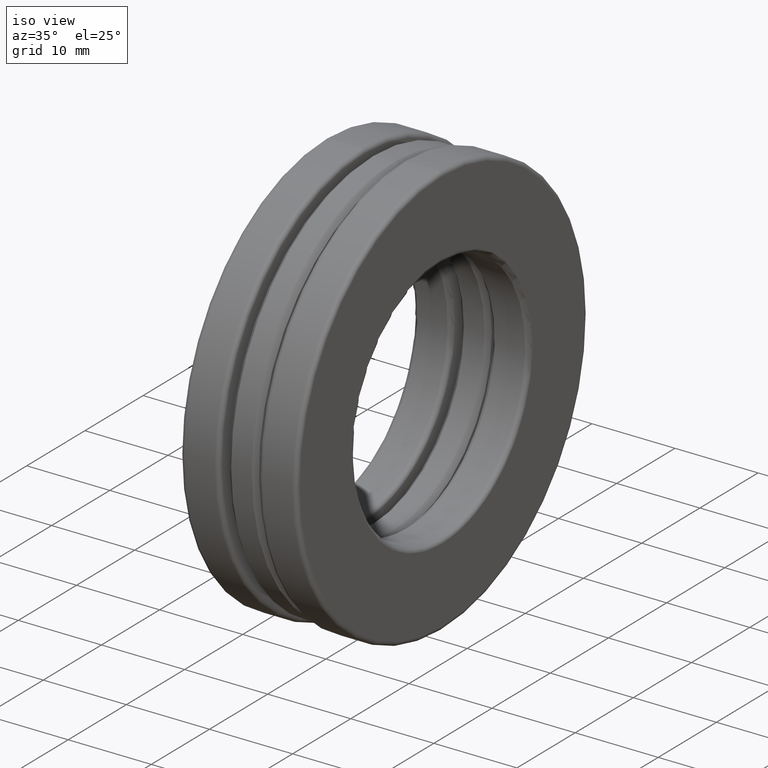
[diagram: clean part render]
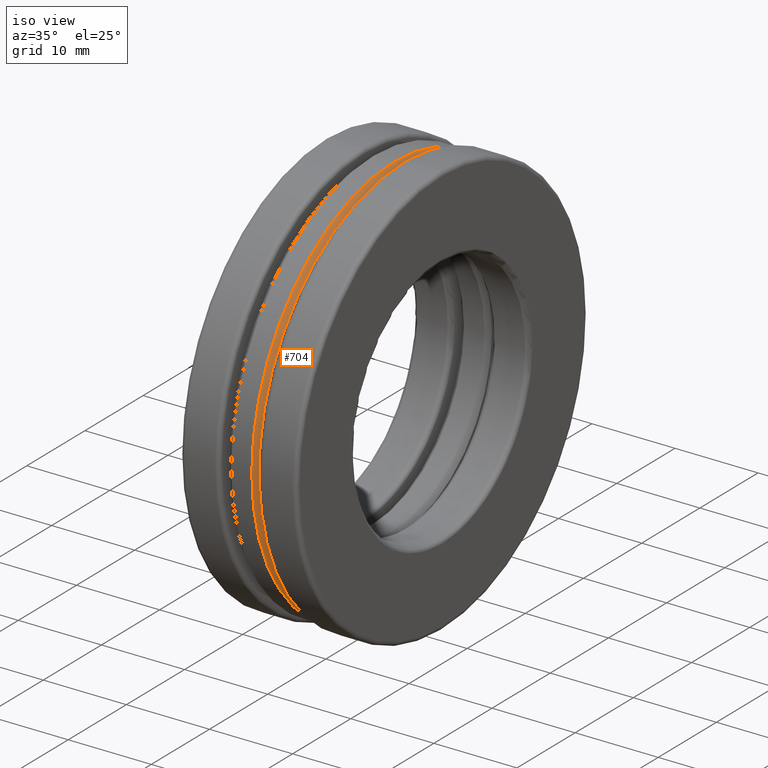
[diagram: same view with one face highlighted and labeled with its STEP entity id]
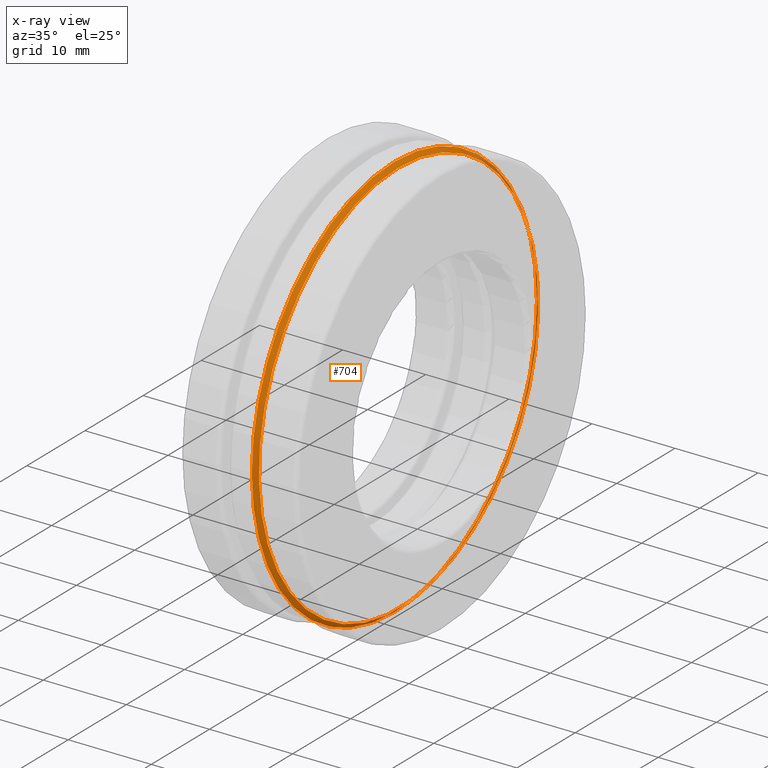
[diagram: x-ray of the same camera — body ghosted, the highlighted face saturated]
A machine part, iso view. The second image highlights one B-rep face of the part: STEP entity #704.
The next image is the same camera in x-ray: the body ghosted, the highlighted face saturated — about 18% of this face is hidden behind the body in this view.
In plain terms, the highlighted conical surface has half-angle 45 deg.
Its self-contained STEP definition (entity closure, byte-faithful):
#9 = FACE_BOUND ( 'NONE', #100, .T. ) ;
#49 = VERTEX_POINT ( 'NONE', #529 ) ;
#58 = EDGE_CURVE ( 'NONE', #601, #601, #663, .T. ) ;
#100 = EDGE_LOOP ( 'NONE', ( #277 ) ) ;
#108 = DIRECTION ( 'NONE',  ( 0.0000000000000000000, 0.0000000000000000000, 1.000000000000000000 ) ) ;
#133 = CARTESIAN_POINT ( 'NONE',  ( 0.06887499999999999200, 0.0000000000000000000, 0.0000000000000000000 ) ) ;
#160 = AXIS2_PLACEMENT_3D ( 'NONE', #133, #326, #749 ) ;
#245 = EDGE_LOOP ( 'NONE', ( #569 ) ) ;
#277 = ORIENTED_EDGE ( 'NONE', *, *, #58, .T. ) ;
#306 = CARTESIAN_POINT ( 'NONE',  ( 0.06887499999999999200, 0.0000000000000000000, 0.9444999999999999000 ) ) ;
#326 = DIRECTION ( 'NONE',  ( -1.000000000000000000, -0.0000000000000000000, -0.0000000000000000000 ) ) ;
#354 = AXIS2_PLACEMENT_3D ( 'NONE', #711, #715, #781 ) ;
#376 = AXIS2_PLACEMENT_3D ( 'NONE', #564, #802, #108 ) ;
#401 = FACE_OUTER_BOUND ( 'NONE', #245, .T. ) ;
#529 = CARTESIAN_POINT ( 'NONE',  ( 0.04887500000000000200, 0.0000000000000000000, 0.9644999999999999100 ) ) ;
#564 = CARTESIAN_POINT ( 'NONE',  ( 0.04887500000000000200, 0.0000000000000000000, 0.0000000000000000000 ) ) ;
#569 = ORIENTED_EDGE ( 'NONE', *, *, #646, .F. ) ;
#601 = VERTEX_POINT ( 'NONE', #306 ) ;
#630 = CIRCLE ( 'NONE', #376, 0.9644999999999999100 ) ;
#646 = EDGE_CURVE ( 'NONE', #49, #49, #630, .T. ) ;
#663 = CIRCLE ( 'NONE', #160, 0.9444999999999999000 ) ;
#704 = ADVANCED_FACE ( 'NONE', ( #9, #401 ), #764, .T. ) ;
#711 = CARTESIAN_POINT ( 'NONE',  ( 0.04887500000000000200, 0.0000000000000000000, 0.0000000000000000000 ) ) ;
#715 = DIRECTION ( 'NONE',  ( -1.000000000000000000, -0.0000000000000000000, -0.0000000000000000000 ) ) ;
#749 = DIRECTION ( 'NONE',  ( 0.0000000000000000000, 0.0000000000000000000, 1.000000000000000000 ) ) ;
#764 = CONICAL_SURFACE ( 'NONE', #354, 0.9644999999999999100, 0.7853981633974500600 ) ;
#781 = DIRECTION ( 'NONE',  ( 0.0000000000000000000, 0.0000000000000000000, 1.000000000000000000 ) ) ;
#802 = DIRECTION ( 'NONE',  ( -1.000000000000000000, -0.0000000000000000000, -0.0000000000000000000 ) ) ;